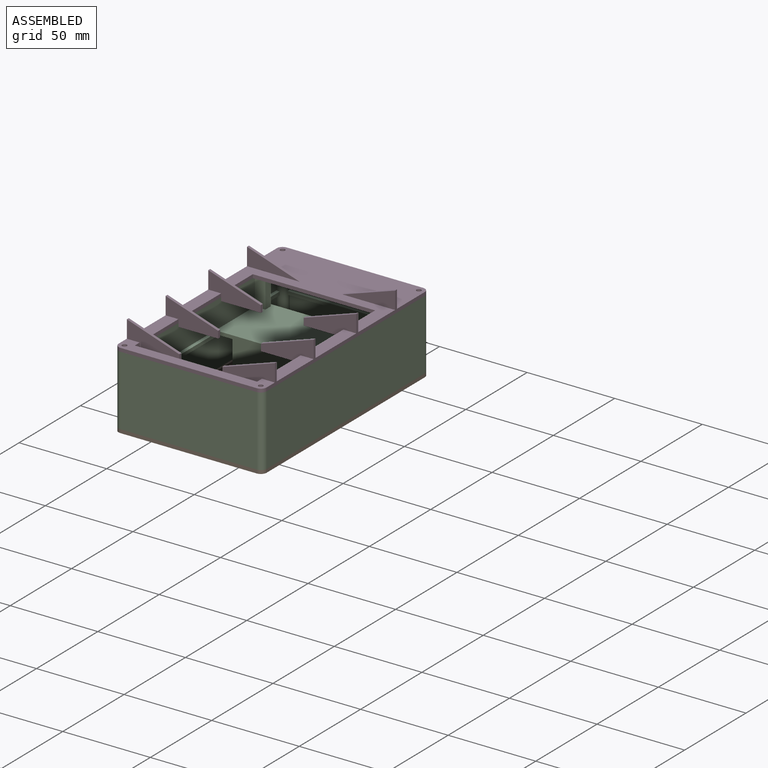
[diagram: assembled view]
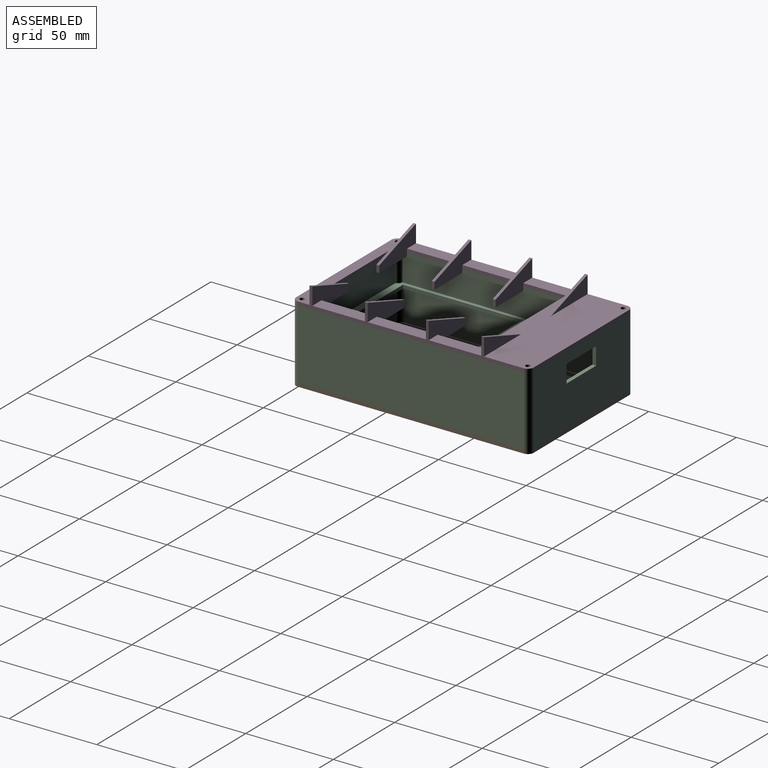
[diagram: assembled view, second angle]
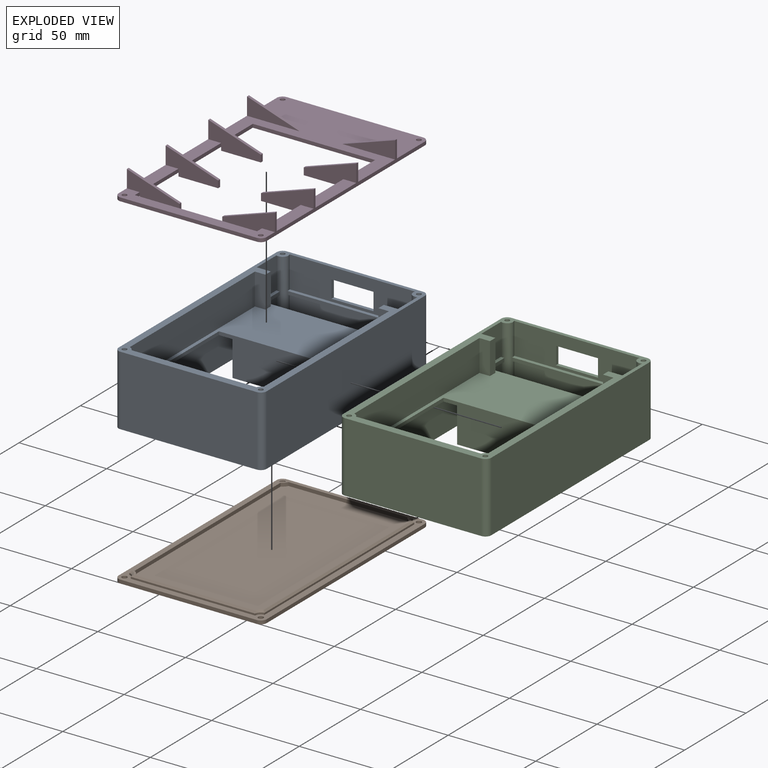
[diagram: exploded view]
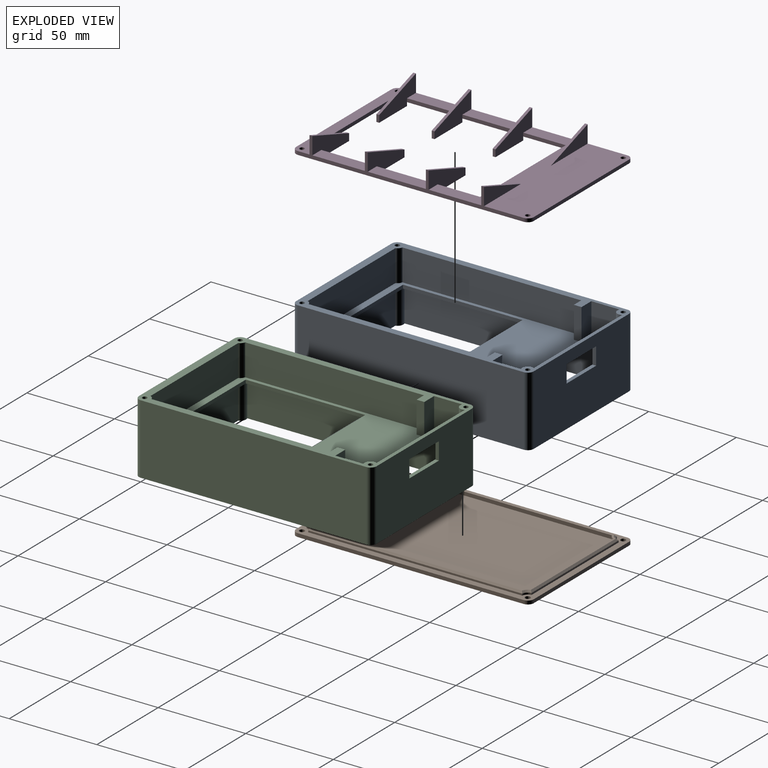
[diagram: exploded view, second angle]
ASSEMBLY  parts=4 mates=2
PART A: 74 faces, bbox 84.5x135.6x40 mm
  f0: plane 71.67x2mm, normal (0,0,-1), area 142.5mm2, adj f1,f27,f28,f46
  f1: plane 71.23x2mm, normal (0,-1,0), area 142.5mm2, adj f0,f9,f27,f28
  f2: plane 13.86x2mm, normal (-1,0,0), area 27.7mm2, adj f5,f10,f14,f28
  f3: plane 13.86x2mm, normal (1,0,0), area 27.7mm2, adj f5,f10,f14,f27
  f4: plane 2.7x2.7mm, normal (0,0,1), area 5.7mm2, adj f29
  f5: plane 124.78x80.5mm, normal (0,0,1), area 3530.6mm2, adj f2,f3,f10,f11,f12,f13,f15,f16
  f6: plane 2.7x2.7mm, normal (0,0,1), area 5.7mm2, adj f30
  f7: plane 2.7x2.7mm, normal (0,0,1), area 5.7mm2, adj f31
  f8: plane 2.7x2.7mm, normal (0,0,1), area 5.7mm2, adj f32
  f9: plane 71.67x2mm, normal (0,0,1), area 142.5mm2, adj f1,f24,f27,f28
  f10: plane 76.5x2mm, normal (0,1,0), area 153mm2, adj f2,f3,f5,f14
  f11: plane 68.15x2mm, normal (-1,0,0), area 136.3mm2, adj f5,f12,f14,f40
  f12: plane 72.5x2mm, normal (0,1,0), area 145mm2, adj f5,f11,f13,f14
  f13: plane 68.15x2mm, normal (1,0,0), area 136.3mm2, adj f5,f12,f14,f40
  f14: plane 124.78x80.5mm, normal (0,0,-1), area 3684.7mm2, adj f2,f3,f10,f11,f12,f13,f27,f28
  f15: plane 18x4.4mm, normal (1,0,0), area 79.2mm2, adj f5,f16,f26,f39
  f16: plane 18x6mm, normal (0,-1,0), area 108mm2, adj f5,f15,f17,f39
  f17: plane 102.06x18mm, normal (1,0,0), area 1837.1mm2, adj f5,f16,f34,f39
  f18: plane 71.44x18mm, normal (0,1,0), area 1285.9mm2, adj f5,f33,f34,f39
  f19: plane 102.06x18mm, normal (-1,0,0), area 1837.1mm2, adj f5,f20,f33,f39
  f20: plane 18x6mm, normal (0,-1,0), area 108mm2, adj f5,f19,f21,f39
  f21: plane 18x4.4mm, normal (-1,0,0), area 79.2mm2, adj f5,f20,f22,f39
  f22: plane 18x8mm, normal (0,1,0), area 144mm2, adj f5,f21,f23,f39
  f23: plane 18x16.08mm, normal (-1,0,0), area 289.5mm2, adj f5,f22,f28,f39
  f24: plane 71.67x18mm, normal (0,-1,0), area 1050mm2, adj f9,f27,f28,f39,f58,f59,f60,f61
  f25: plane 18x16.08mm, normal (1,0,0), area 289.5mm2, adj f5,f26,f27,f39
  f26: plane 18x8mm, normal (0,1,0), area 144mm2, adj f5,f15,f25,f39
  f27: cylinder r=3.35mm len=40mm, axis (0,0,-1), area 313.5mm2, adj f0,f1,f3,f5,f9,f14,f24,f25
  f28: cylinder r=3.35mm len=40mm, axis (0,0,-1), area 313.5mm2, adj f0,f1,f2,f5,f9,f14,f23,f24
  f29: cylinder r=1.35mm len=18mm, axis (0,0,-1), area 152.7mm2, adj f4,f39
  f30: cylinder r=1.35mm len=18mm, axis (0,0,-1), area 152.7mm2, adj f6,f39
  f31: cylinder r=1.35mm len=18mm, axis (0,0,-1), area 152.7mm2, adj f7,f39
  f32: cylinder r=1.35mm len=18mm, axis (0,0,-1), area 152.7mm2, adj f8,f39
  f33: cylinder r=3.35mm len=18mm, axis (0,0,-1), area 63.7mm2, adj f5,f18,f19,f39
  f34: cylinder r=3.35mm len=18mm, axis (0,0,-1), area 63.7mm2, adj f5,f17,f18,f39
  f35: plane 128.9x40mm, normal (-1,0,0), area 5156mm2, adj f39,f47,f70,f73
  f36: plane 77.8x40mm, normal (0,-1,0), area 3112mm2, adj f39,f47,f72,f73
  f37: plane 128.9x40mm, normal (1,0,0), area 5156mm2, adj f39,f47,f71,f72
  f38: plane 77.8x40mm, normal (0,1,0), area 2872mm2, adj f39,f47,f58,f59,f60,f61,f70,f71
  f39: plane 135.6x84.5mm, normal (0,0,1), area 1559.3mm2, adj f15,f16,f17,f18,f19,f20,f21,f22
  f40: plane 72.5x22mm, normal (0,-1,0), area 1285mm2, adj f5,f11,f13,f14,f51,f55,f57
  f41: cylinder r=3.35mm len=20mm, axis (0,0,1), area 111.7mm2, adj f14,f42,f45,f47
  f42: plane 71.44x20mm, normal (0,1,0), area 1428.8mm2, adj f14,f41,f43,f47
  f43: cylinder r=3.35mm len=20mm, axis (0,0,1), area 111.7mm2, adj f14,f42,f44,f47
  f44: plane 122.77x20mm, normal (1,0,0), area 2455.4mm2, adj f14,f27,f43,f47
  f45: plane 122.77x20mm, normal (-1,0,0), area 2455.4mm2, adj f14,f28,f41,f47
  f46: plane 71.67x20mm, normal (0,-1,0), area 1433.4mm2, adj f0,f27,f28,f47
  f47: plane 135.6x84.5mm, normal (0,0,-1), area 1080.6mm2, adj f27,f28,f35,f36,f37,f38,f41,f42
  f48: plane 20x2mm, normal (0,1,0), area 40mm2, adj f14,f52,f55,f57
  f49: plane 20x2mm, normal (-1,0,0), area 40mm2, adj f14,f50,f56,f57
  f50: plane 45x20mm, normal (0,1,0), area 900mm2, adj f14,f49,f51,f57
  f51: plane 32.15x20mm, normal (1,0,0), area 643mm2, adj f14,f40,f50,f57
  f52: plane 28x20mm, normal (1,0,0), area 560mm2, adj f14,f48,f53,f57
  f53: plane 53x20mm, normal (0,1,0), area 1060mm2, adj f14,f52,f54,f57
  f54: plane 28x20mm, normal (-1,0,0), area 560mm2, adj f14,f53,f56,f57
  f55: plane 30.15x20mm, normal (-1,0,0), area 603mm2, adj f14,f40,f48,f57
  f56: plane 43x20mm, normal (0,-1,0), area 860mm2, adj f14,f49,f54,f57
  f57: plane 57x32.15mm, normal (0,0,-1), area 324.5mm2, adj f40,f48,f49,f50,f51,f52,f53,f54
  f58: plane 10x2mm, normal (-1,0,0), area 20mm2, adj f24,f38,f59,f61
  f59: plane 24x2mm, normal (0,0,1), area 48mm2, adj f24,f38,f58,f60
  f60: plane 10x2mm, normal (1,0,0), area 20mm2, adj f24,f38,f59,f61
  f61: plane 24x2mm, normal (0,0,-1), area 48mm2, adj f24,f38,f58,f60
  f62: cylinder r=1.35mm len=10mm, axis (0,0,-1), area 84.8mm2, adj f47,f63
  f63: cone r=0mm half-angle=59deg, axis (0,0,-1), area 6.7mm2, adj f62
  f64: cylinder r=1.35mm len=10mm, axis (0,0,-1), area 84.8mm2, adj f47,f65
  f65: cone r=0mm half-angle=59deg, axis (0,0,-1), area 6.7mm2, adj f64
  f66: cylinder r=1.35mm len=10mm, axis (0,0,-1), area 84.8mm2, adj f47,f67
  f67: cone r=0mm half-angle=59deg, axis (0,0,-1), area 6.7mm2, adj f66
  f68: cylinder r=1.35mm len=10mm, axis (0,0,-1), area 84.8mm2, adj f47,f69
  f69: cone r=0mm half-angle=59deg, axis (0,0,-1), area 6.7mm2, adj f68
  f70: cylinder r=3.35mm len=40mm, axis (0,0,1), area 210.5mm2, adj f35,f38,f39,f47
  f71: cylinder r=3.35mm len=40mm, axis (0,0,-1), area 210.5mm2, adj f37,f38,f39,f47
  f72: cylinder r=3.35mm len=40mm, axis (0,0,1), area 210.5mm2, adj f36,f37,f39,f47
  f73: cylinder r=3.35mm len=40mm, axis (0,0,-1), area 210.5mm2, adj f35,f36,f39,f47
PART B: 40 faces, bbox 84.6x135.7x4.1 mm
  f0: plane 135.6x84.5mm, normal (0,0,-1), area 1537mm2, adj f1,f2,f3,f4,f6,f7,f8,f9
  f1: plane 128.9x2mm, normal (-1,0,0), area 257.8mm2, adj f0,f5,f10,f13
  f2: plane 77.8x2mm, normal (0,-1,0), area 155.6mm2, adj f0,f5,f12,f13
  f3: plane 128.9x2mm, normal (1,0,0), area 257.8mm2, adj f0,f5,f11,f12
  f4: plane 77.8x2mm, normal (0,1,0), area 155.6mm2, adj f0,f5,f10,f11
  f5: plane 135.6x84.5mm, normal (0,0,1), area 11420.3mm2, adj f1,f2,f3,f4,f6,f7,f8,f9
  f6: cylinder r=1.5mm len=3mm, axis (0,0,-1), area 18.8mm2, adj f0,f5
  f7: cylinder r=1.5mm len=3mm, axis (0,0,-1), area 18.8mm2, adj f0,f5
  f8: cylinder r=1.5mm len=3mm, axis (0,0,-1), area 18.8mm2, adj f0,f5
  f9: cylinder r=1.5mm len=3mm, axis (0,0,-1), area 18.8mm2, adj f0,f5
  f10: cylinder r=3.35mm len=3.35mm, axis (0,0,1), area 10.5mm2, adj f0,f1,f4,f5
  f11: cylinder r=3.35mm len=3.35mm, axis (0,0,-1), area 10.5mm2, adj f0,f3,f4,f5
  f12: cylinder r=3.35mm len=3.35mm, axis (0,0,1), area 10.5mm2, adj f0,f2,f3,f5
  f13: cylinder r=3.35mm len=3.35mm, axis (0,0,-1), area 10.5mm2, adj f0,f1,f2,f5
  f14: plane 122.13x1mm, normal (-1,0,0), area 122.1mm2, adj f0,f15,f29,f33
  f15: cylinder r=3.4mm len=3.14mm, axis (0,0,1), area 4.8mm2, adj f0,f14,f16,f32
  f16: plane 71.02x1mm, normal (0,-1,0), area 71mm2, adj f0,f15,f17,f34
  f17: cylinder r=3.4mm len=3.14mm, axis (0,0,1), area 4.8mm2, adj f0,f16,f18,f36
  f18: plane 122.13x1mm, normal (1,0,0), area 122.1mm2, adj f0,f17,f19,f38
  f19: cylinder r=3.4mm len=3.14mm, axis (0,0,1), area 4.8mm2, adj f0,f18,f20,f39
  f20: plane 71.02x1mm, normal (0,1,0), area 71mm2, adj f0,f19,f29,f37
  f21: plane 119.13x2mm, normal (1,0,0), area 238.3mm2, adj f22,f28,f30,f31
  f22: cylinder r=5.4mm len=2.64mm, axis (0,0,1), area 7.6mm2, adj f21,f23,f30,f31
  f23: plane 67.98x2mm, normal (0,-1,0), area 136mm2, adj f22,f24,f30,f31
  f24: cylinder r=5.4mm len=2.64mm, axis (0,0,1), area 7.6mm2, adj f23,f25,f30,f31
  f25: plane 119.13x2mm, normal (-1,0,0), area 238.3mm2, adj f24,f26,f30,f31
  f26: cylinder r=5.4mm len=2.64mm, axis (0,0,1), area 7.6mm2, adj f25,f27,f30,f31
  f27: plane 67.98x2mm, normal (0,1,0), area 136mm2, adj f26,f28,f30,f31
  f28: cylinder r=5.4mm len=2.64mm, axis (0,0,1), area 7.6mm2, adj f21,f27,f30,f31
  f29: cylinder r=3.4mm len=3.14mm, axis (0,0,1), area 4.8mm2, adj f0,f14,f20,f35
  f30: plane 126.4x75.2mm, normal (0,0,-1), area 393.1mm2, adj f21,f22,f23,f24,f25,f26,f27,f28
  f31: plane 124.4x73.2mm, normal (0,0,-1), area 9089.1mm2, adj f21,f22,f23,f24,f25,f26,f27,f28
  f32: cone r=4.4mm half-angle=45deg, axis (0,0,-1), area 6.5mm2, adj f15,f30,f33,f34
  f33: plane 122.21x1.09mm, normal (-0.71,0,-0.71), area 171.5mm2, adj f14,f30,f32,f35
  f34: plane 71.11x1.09mm, normal (0,-0.71,-0.71), area 99.2mm2, adj f16,f30,f32,f36
  f35: cone r=4.4mm half-angle=45deg, axis (0,0,-1), area 6.5mm2, adj f29,f30,f33,f37
  f36: cone r=4.4mm half-angle=45deg, axis (0,0,-1), area 6.5mm2, adj f17,f30,f34,f38
  f37: plane 71.11x1.09mm, normal (0,0.71,-0.71), area 99.2mm2, adj f20,f30,f35,f39
  f38: plane 122.21x1.09mm, normal (0.71,0,-0.71), area 171.5mm2, adj f18,f30,f36,f39
  f39: cone r=4.4mm half-angle=45deg, axis (0,0,-1), area 6.5mm2, adj f19,f30,f37,f38
PART C: same geometry as A
PART D: 71 faces, bbox 84.5x135.6x14 mm
  f0: plane 33.2x2mm, normal (-1,0,0), area 66.4mm2, adj f14,f28,f36,f39
  f1: plane 33.2x2mm, normal (1,0,0), area 66.4mm2, adj f9,f13,f18,f28
  f2: plane 4x2mm, normal (-1,0,0), area 8mm2, adj f6,f19,f20,f28
  f3: plane 4x2mm, normal (1,0,0), area 8mm2, adj f19,f20,f28,f37
  f4: plane 30x2mm, normal (-1,0,0), area 60mm2, adj f16,f28,f35,f38
  f5: plane 30x2mm, normal (1,0,0), area 60mm2, adj f10,f11,f17,f28
  f6: plane 30x14mm, normal (0,-1,0), area 240.6mm2, adj f2,f19,f24,f43,f58,f59,f60
  f7: plane 30x10mm, normal (0,-1,0), area 150mm2, adj f15,f26,f48
  f8: plane 30x10mm, normal (0,1,0), area 150mm2, adj f15,f26,f48
  f9: plane 30x14mm, normal (0,1,0), area 240.6mm2, adj f1,f18,f26,f46,f49,f50,f51
  f10: plane 30x14mm, normal (0,-1,0), area 240.6mm2, adj f5,f17,f26,f46,f49,f50,f51
  f11: plane 30x14mm, normal (0,1,0), area 240.6mm2, adj f5,f17,f26,f44,f55,f56,f57
  f12: plane 30x14mm, normal (0,1,0), area 240.6mm2, adj f15,f21,f26,f42,f61,f62,f63
  f13: plane 30x14mm, normal (0,-1,0), area 240.6mm2, adj f1,f18,f26,f42,f61,f62,f63
  f14: plane 33.2x7.35mm, normal (0,0,1), area 244mm2, adj f0,f24,f36,f39
  f15: plane 84.5x57.6mm, normal (0,0,1), area 3062.3mm2, adj f7,f8,f12,f21,f22,f24,f25,f26
  f16: plane 30x7.35mm, normal (0,0,1), area 220.5mm2, adj f4,f24,f35,f38
  f17: plane 30x7.35mm, normal (0,0,1), area 220.5mm2, adj f5,f10,f11,f26
  f18: plane 33.2x7.35mm, normal (0,0,1), area 244mm2, adj f1,f9,f13,f26
  f19: plane 84.5x10mm, normal (0,0,1), area 549.5mm2, adj f2,f3,f6,f20,f23,f24,f26,f31
  f20: plane 69.8x2mm, normal (0,1,0), area 139.6mm2, adj f2,f3,f19,f28
  f21: plane 24.25x2mm, normal (1,0,0), area 48.5mm2, adj f12,f15,f22,f28
  f22: plane 69.8x2mm, normal (0,-1,0), area 139.6mm2, adj f15,f21,f27,f28
  f23: plane 77.8x2mm, normal (0,-1,0), area 155.6mm2, adj f19,f28,f67,f68
  f24: plane 128.9x12mm, normal (1,0,0), area 321.8mm2, adj f6,f14,f15,f16,f19,f28,f33,f34
  f25: plane 77.8x2mm, normal (0,1,0), area 155.6mm2, adj f15,f28,f69,f70
  f26: plane 128.9x12mm, normal (-1,0,0), area 321.8mm2, adj f7,f8,f9,f10,f11,f12,f13,f15
  f27: plane 24.25x2mm, normal (-1,0,0), area 48.5mm2, adj f15,f22,f28,f40
  f28: plane 135.6x84.5mm, normal (0,0,-1), area 4707.4mm2, adj f0,f1,f2,f3,f4,f5,f20,f21
  f29: cylinder r=1.35mm len=2.7mm, axis (0,0,-1), area 17mm2, adj f15,f28
  f30: cylinder r=1.35mm len=2.7mm, axis (0,0,-1), area 17mm2, adj f15,f28
  f31: cylinder r=1.35mm len=2.7mm, axis (0,0,-1), area 17mm2, adj f19,f28
  f32: cylinder r=1.35mm len=2.7mm, axis (0,0,-1), area 17mm2, adj f19,f28
  f33: plane 30x10mm, normal (0,-1,0), area 150mm2, adj f15,f24,f47
  f34: plane 30x10mm, normal (0,1,0), area 150mm2, adj f15,f24,f47
  f35: plane 30x14mm, normal (0,-1,0), area 240.6mm2, adj f4,f16,f24,f45,f52,f53,f54
  f36: plane 30x14mm, normal (0,1,0), area 240.6mm2, adj f0,f14,f24,f45,f52,f53,f54
  f37: plane 30x14mm, normal (0,-1,0), area 240.6mm2, adj f3,f19,f26,f44,f55,f56,f57
  f38: plane 30x14mm, normal (0,1,0), area 240.6mm2, adj f4,f16,f24,f43,f58,f59,f60
  f39: plane 30x14mm, normal (0,-1,0), area 240.6mm2, adj f0,f14,f24,f41,f64,f65,f66
  f40: plane 30x14mm, normal (0,1,0), area 240.6mm2, adj f15,f24,f27,f41,f64,f65,f66
  f41: plane 30x10mm, normal (-0.32,0,0.95), area 50.6mm2, adj f24,f39,f40,f65
  f42: plane 30x10mm, normal (0.32,0,0.95), area 50.6mm2, adj f12,f13,f26,f62
  f43: plane 30x10mm, normal (-0.32,0,0.95), area 50.6mm2, adj f6,f24,f38,f59
  f44: plane 30x10mm, normal (0.32,0,0.95), area 50.6mm2, adj f11,f26,f37,f56
  f45: plane 30x10mm, normal (-0.32,0,0.95), area 50.6mm2, adj f24,f35,f36,f53
  f46: plane 30x10mm, normal (0.32,0,0.95), area 50.6mm2, adj f9,f10,f26,f50
  f47: plane 30x10mm, normal (-0.32,0,0.95), area 50.6mm2, adj f15,f24,f33,f34
  f48: plane 30x10mm, normal (0.32,0,0.95), area 50.6mm2, adj f7,f8,f15,f26
  f49: plane 2x1.6mm, normal (-1,0,0), area 3.2mm2, adj f9,f10,f28,f51
  f50: plane 4x1.6mm, normal (1,0,0), area 6.4mm2, adj f9,f10,f46,f51
  f51: plane 22.65x1.6mm, normal (0,0,-1), area 36.2mm2, adj f9,f10,f49,f50
  f52: plane 2x1.6mm, normal (1,0,0), area 3.2mm2, adj f28,f35,f36,f54
  f53: plane 4x1.6mm, normal (-1,0,0), area 6.4mm2, adj f35,f36,f45,f54
  f54: plane 22.65x1.6mm, normal (0,0,-1), area 36.2mm2, adj f35,f36,f52,f53
  f55: plane 2x1.6mm, normal (-1,0,0), area 3.2mm2, adj f11,f28,f37,f57
  f56: plane 4x1.6mm, normal (1,0,0), area 6.4mm2, adj f11,f37,f44,f57
  f57: plane 22.65x1.6mm, normal (0,0,-1), area 36.2mm2, adj f11,f37,f55,f56
  f58: plane 2x1.6mm, normal (1,0,0), area 3.2mm2, adj f6,f28,f38,f60
  f59: plane 4x1.6mm, normal (-1,0,0), area 6.4mm2, adj f6,f38,f43,f60
  f60: plane 22.65x1.6mm, normal (0,0,-1), area 36.2mm2, adj f6,f38,f58,f59
  f61: plane 2x1.6mm, normal (-1,0,0), area 3.2mm2, adj f12,f13,f28,f63
  f62: plane 4x1.6mm, normal (1,0,0), area 6.4mm2, adj f12,f13,f42,f63
  f63: plane 22.65x1.6mm, normal (0,0,-1), area 36.2mm2, adj f12,f13,f61,f62
  f64: plane 2x1.6mm, normal (1,0,0), area 3.2mm2, adj f28,f39,f40,f66
  f65: plane 4x1.6mm, normal (-1,0,0), area 6.4mm2, adj f39,f40,f41,f66
  f66: plane 22.65x1.6mm, normal (0,0,-1), area 36.2mm2, adj f39,f40,f64,f65
  f67: cylinder r=3.35mm len=3.35mm, axis (0,0,-1), area 10.5mm2, adj f19,f23,f26,f28
  f68: cylinder r=3.35mm len=3.35mm, axis (0,0,1), area 10.5mm2, adj f19,f23,f24,f28
  f69: cylinder r=3.35mm len=3.35mm, axis (0,0,-1), area 10.5mm2, adj f15,f24,f25,f28
  f70: cylinder r=3.35mm len=3.35mm, axis (0,0,1), area 10.5mm2, adj f15,f25,f26,f28
PLACE A t=(17.87,4.36,7.91)mm
PLACE B rot(axis=(0,1,0),180deg) t=(20.21,12.94,-12.09)mm
PLACE C t=(17.87,4.36,7.91)mm
PLACE D t=(20.21,12.94,27.91)mm
MATE slider B.f7 <-> A.f30  axis (0,0,1) through (-18.69,-51.51,-12.09)mm
MATE slider D.f32 <-> A.f30  axis (0,0,-1) through (-18.69,-51.51,27.91)mm
